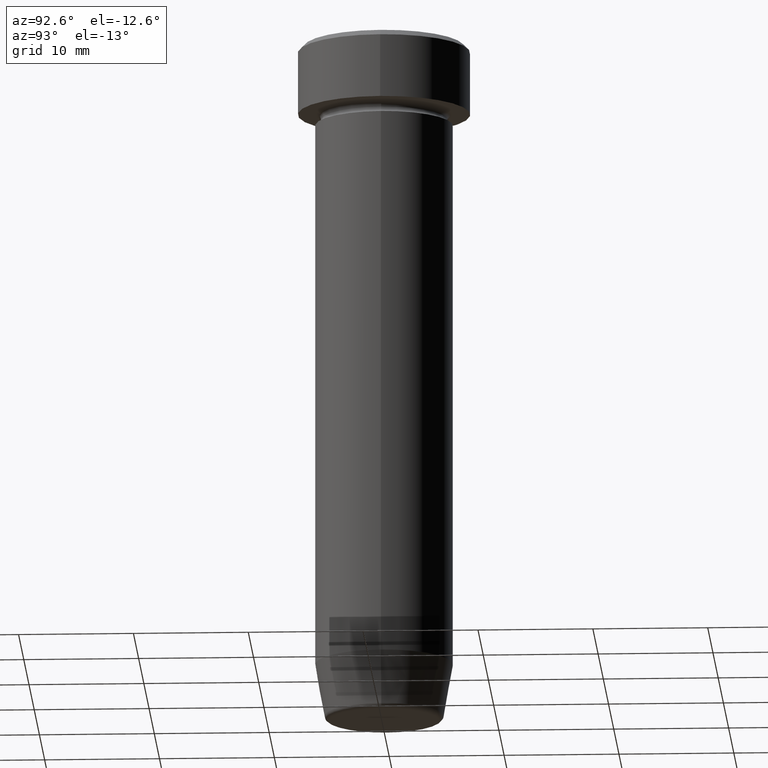
[diagram: clean part render]
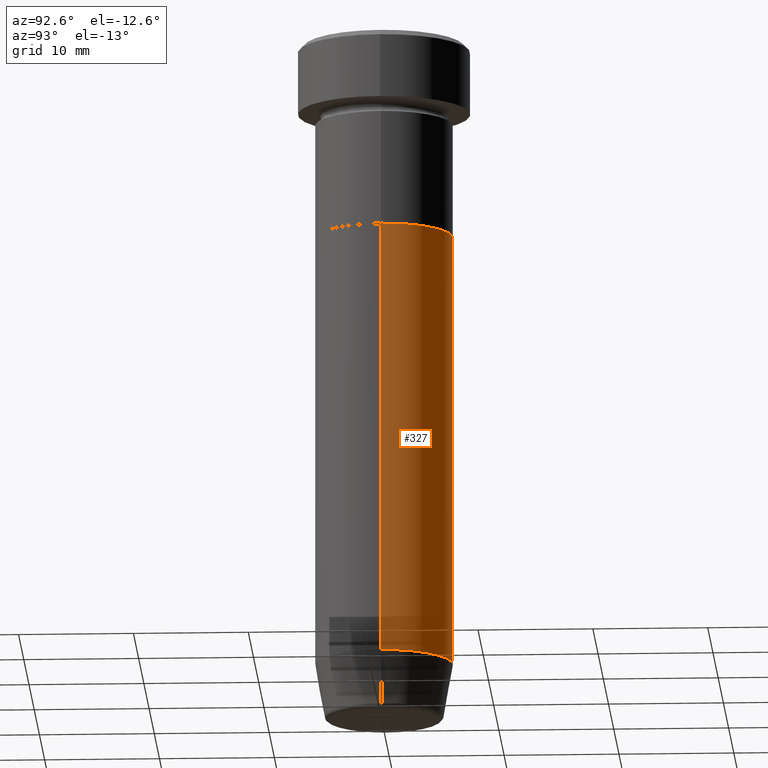
[diagram: same view with one face highlighted and labeled with its STEP entity id]
A machine part, auxiliary view. The second image highlights one B-rep face of the part: STEP entity #327.
In plain terms, the highlighted cylindrical surface (partial cylindrical patch) has radius 6 mm, axis along (-0, -0, 1).
Its self-contained STEP definition (entity closure, byte-faithful):
#17 = VERTEX_POINT ( 'NONE', #58 ) ;
#24 = VECTOR ( 'NONE', #115, 1000.000000000000000 ) ;
#49 = ORIENTED_EDGE ( 'NONE', *, *, #424, .T. ) ;
#58 = CARTESIAN_POINT ( 'NONE',  ( 6.000000000000000000, 0.000000000000000000, -17.00000000000000000 ) ) ;
#61 = CIRCLE ( 'NONE', #238, 6.000000000000000000 ) ;
#75 = CARTESIAN_POINT ( 'NONE',  ( 0.000000000000000000, 0.000000000000000000, 0.000000000000000000 ) ) ;
#81 = AXIS2_PLACEMENT_3D ( 'NONE', #75, #371, #272 ) ;
#88 = EDGE_CURVE ( 'NONE', #17, #339, #61, .T. ) ;
#115 = DIRECTION ( 'NONE',  ( -0.000000000000000000, -0.000000000000000000, 1.000000000000000000 ) ) ;
#120 = DIRECTION ( 'NONE',  ( 1.000000000000000000, 0.000000000000000000, 0.000000000000000000 ) ) ;
#123 = EDGE_CURVE ( 'NONE', #154, #290, #452, .T. ) ;
#133 = CARTESIAN_POINT ( 'NONE',  ( -6.000000000000000000, 7.347880794884119736E-16, -17.00000000000000000 ) ) ;
#143 = EDGE_LOOP ( 'NONE', ( #365, #49, #301, #570 ) ) ;
#145 = CARTESIAN_POINT ( 'NONE',  ( 6.000000000000000000, 0.000000000000000000, -55.00000000000000000 ) ) ;
#154 = VERTEX_POINT ( 'NONE', #145 ) ;
#161 = DIRECTION ( 'NONE',  ( 1.000000000000000000, 0.000000000000000000, 0.000000000000000000 ) ) ;
#175 = DIRECTION ( 'NONE',  ( -0.000000000000000000, -0.000000000000000000, 1.000000000000000000 ) ) ;
#232 = DIRECTION ( 'NONE',  ( -0.000000000000000000, -0.000000000000000000, 1.000000000000000000 ) ) ;
#238 = AXIS2_PLACEMENT_3D ( 'NONE', #467, #175, #120 ) ;
#270 = FACE_OUTER_BOUND ( 'NONE', #143, .T. ) ;
#272 = DIRECTION ( 'NONE',  ( 1.000000000000000000, 0.000000000000000000, 0.000000000000000000 ) ) ;
#274 = CARTESIAN_POINT ( 'NONE',  ( 0.000000000000000000, 0.000000000000000000, -55.00000000000000000 ) ) ;
#288 = AXIS2_PLACEMENT_3D ( 'NONE', #274, #232, #161 ) ;
#290 = VERTEX_POINT ( 'NONE', #314 ) ;
#301 = ORIENTED_EDGE ( 'NONE', *, *, #88, .F. ) ;
#314 = CARTESIAN_POINT ( 'NONE',  ( -6.000000000000000000, 7.347880794884119736E-16, -55.00000000000000000 ) ) ;
#327 = ADVANCED_FACE ( 'NONE', ( #270 ), #589, .T. ) ;
#339 = VERTEX_POINT ( 'NONE', #133 ) ;
#365 = ORIENTED_EDGE ( 'NONE', *, *, #123, .T. ) ;
#371 = DIRECTION ( 'NONE',  ( -0.000000000000000000, -0.000000000000000000, 1.000000000000000000 ) ) ;
#386 = LINE ( 'NONE', #516, #433 ) ;
#424 = EDGE_CURVE ( 'NONE', #290, #339, #386, .T. ) ;
#429 = DIRECTION ( 'NONE',  ( -0.000000000000000000, -0.000000000000000000, 1.000000000000000000 ) ) ;
#433 = VECTOR ( 'NONE', #429, 1000.000000000000000 ) ;
#452 = CIRCLE ( 'NONE', #288, 6.000000000000000000 ) ;
#467 = CARTESIAN_POINT ( 'NONE',  ( 0.000000000000000000, 0.000000000000000000, -17.00000000000000000 ) ) ;
#490 = EDGE_CURVE ( 'NONE', #154, #17, #537, .T. ) ;
#516 = CARTESIAN_POINT ( 'NONE',  ( -6.000000000000000000, 7.347880794884119736E-16, 0.000000000000000000 ) ) ;
#537 = LINE ( 'NONE', #576, #24 ) ;
#570 = ORIENTED_EDGE ( 'NONE', *, *, #490, .F. ) ;
#576 = CARTESIAN_POINT ( 'NONE',  ( 6.000000000000000000, 0.000000000000000000, 0.000000000000000000 ) ) ;
#589 = CYLINDRICAL_SURFACE ( 'NONE', #81, 6.000000000000000000 ) ;